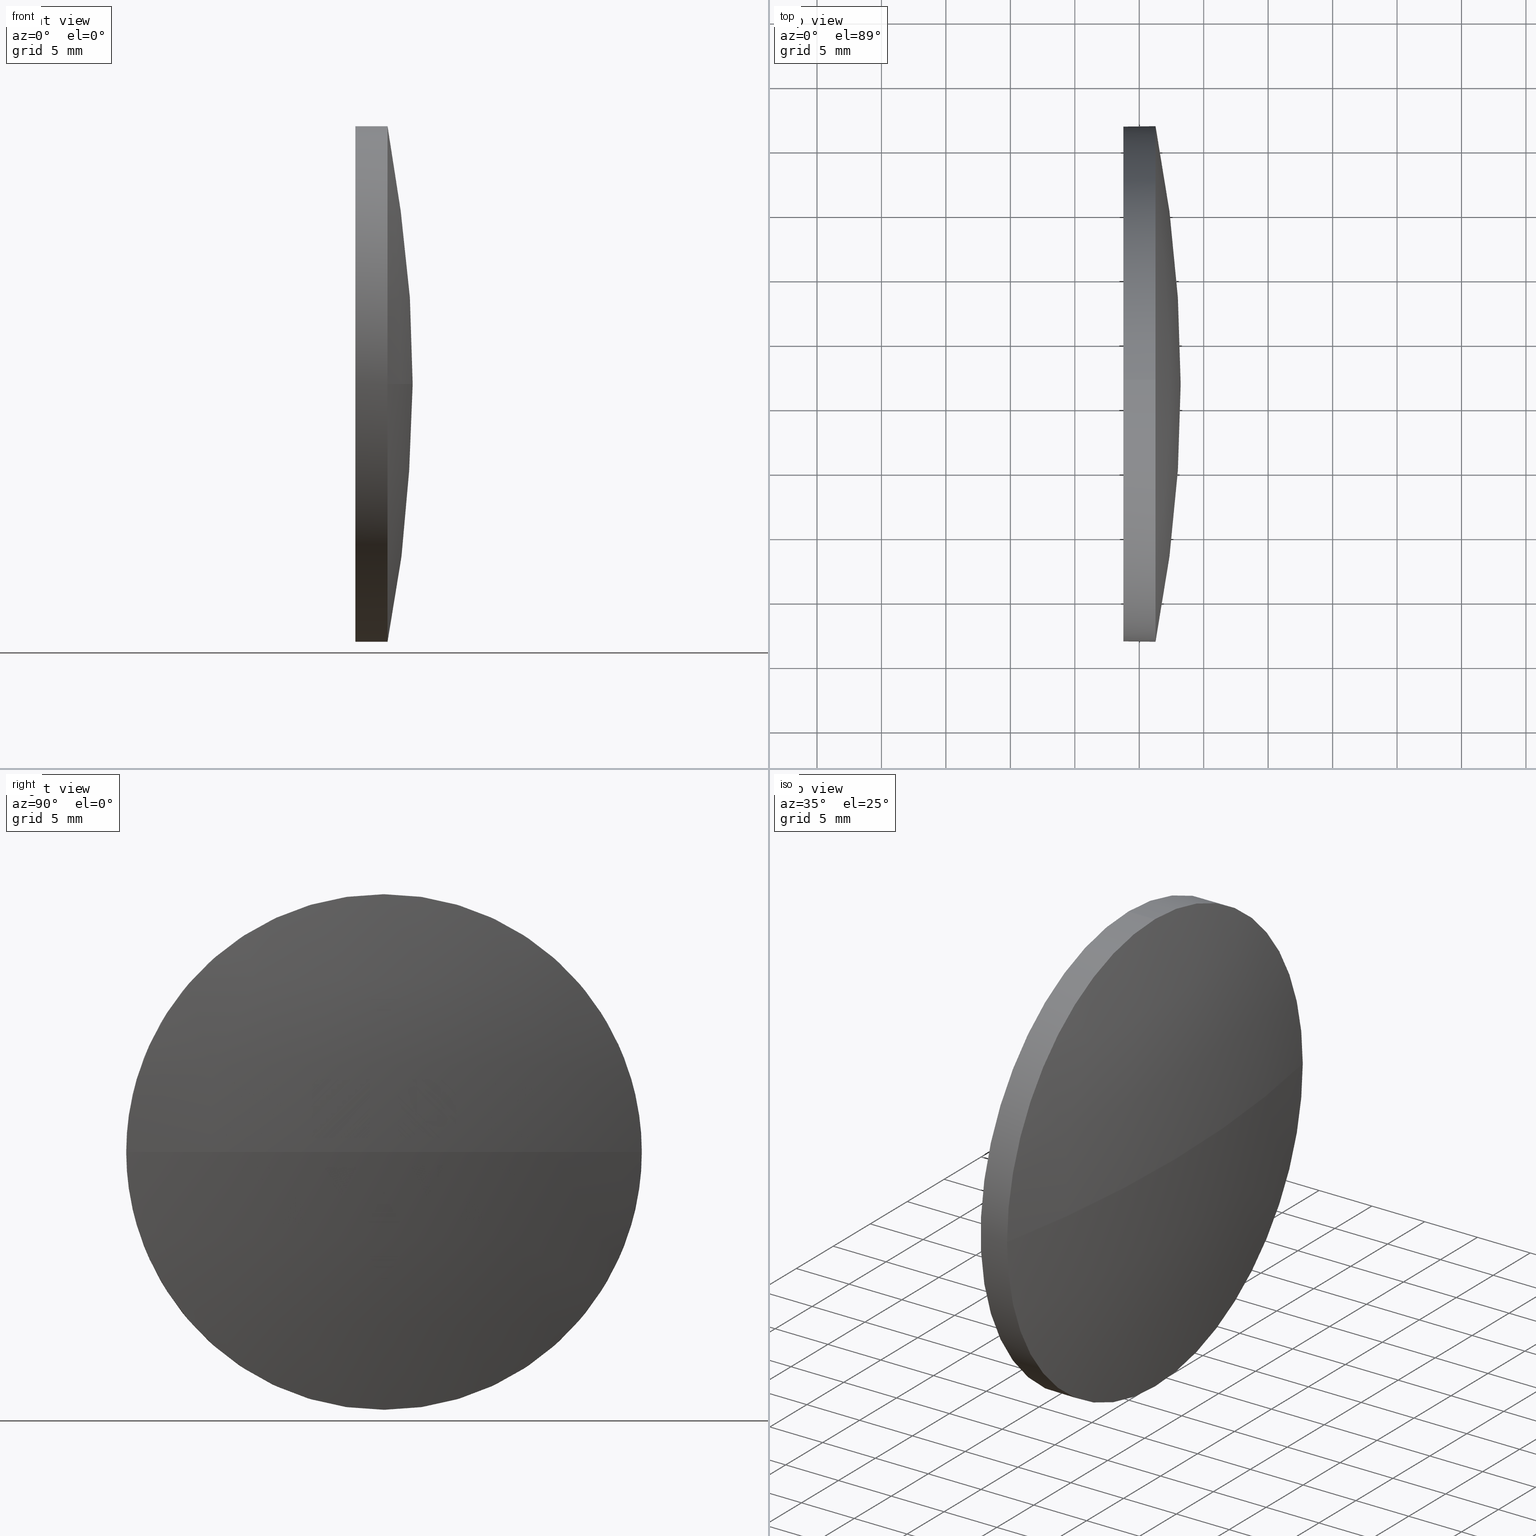
[diagram: canonical four-view strip — front | top / right | iso, engineering-drawing reading convention]
A machine part, canonical four-view strip (front | top / right | iso — engineering-drawing reading convention). The complete STEP part file that produces these views, byte-faithful:
ISO-10303-21;
HEADER;
FILE_DESCRIPTION (( 'STEP AP214' ),
    '1' );
FILE_NAME ('100233.STEP',
    '2019-05-27T09:36:45',
    ( '' ),
    ( '' ),
    'SwSTEP 2.0',
    'SolidWorks 2016',
    '' );
FILE_SCHEMA (( 'AUTOMOTIVE_DESIGN' ));
ENDSEC;

DATA;
#1 = DIRECTION ( 'NONE',  ( 1.000000000000000000, 0.0000000000000000000, 0.0000000000000000000 ) ) ;
#2 = SURFACE_SIDE_STYLE ('',( #156 ) ) ;
#3 = EDGE_LOOP ( 'NONE', ( #80, #157, #125, #52 ) ) ;
#4 = EDGE_LOOP ( 'NONE', ( #153, #90, #167, #107, #173 ) ) ;
#5 = VERTEX_POINT ( 'NONE', #97 ) ;
#6 = CIRCLE ( 'NONE', #106, 20.00000000000000400 ) ;
#7 = EDGE_CURVE ( 'NONE', #5, #119, #6, .T. ) ;
#8 = ORIENTED_EDGE ( 'NONE', *, *, #23, .T. ) ;
#9 = VECTOR ( 'NONE', #104, 1000.000000000000000 ) ;
#10 = ADVANCED_FACE ( 'NONE', ( #82 ), #129, .F. ) ;
#11 = CARTESIAN_POINT ( 'NONE',  ( 398.7641761276700000, 121.7145890969490300, 0.0000000000000000000 ) ) ;
#12 = DIRECTION ( 'NONE',  ( 0.0000000000000000000, 0.0000000000000000000, 1.000000000000000000 ) ) ;
#13 = CARTESIAN_POINT ( 'NONE',  ( 398.7641761276700000, 121.7145890969490300, 0.0000000000000000000 ) ) ;
#14 = DIRECTION ( 'NONE',  ( 0.0000000000000000000, 0.0000000000000000000, 1.000000000000000000 ) ) ;
#15 =( LENGTH_UNIT ( ) NAMED_UNIT ( * ) SI_UNIT ( .MILLI., .METRE. ) );
#16 = AXIS2_PLACEMENT_3D ( 'NONE', #51, #89, #1 ) ;
#17 = DIRECTION ( 'NONE',  ( -1.000000000000000000, -0.0000000000000000000, -0.0000000000000000000 ) ) ;
#18 = DIRECTION ( 'NONE',  ( -1.000000000000000000, -0.0000000000000000000, -0.0000000000000000000 ) ) ;
#19 = PRODUCT_CONTEXT ( 'NONE', #75, 'mechanical' ) ;
#20 = EDGE_CURVE ( 'NONE', #180, #22, #102, .T. ) ;
#21 = PRODUCT_DEFINITION_CONTEXT ( 'detailed design', #108, 'design' ) ;
#22 = VERTEX_POINT ( 'NONE', #44 ) ;
#23 = EDGE_CURVE ( 'NONE', #22, #5, #111, .T. ) ;
#24 = LINE ( 'NONE', #144, #139 ) ;
#25 = EDGE_CURVE ( 'NONE', #119, #66, #24, .T. ) ;
#26 = DIRECTION ( 'NONE',  ( 0.0000000000000000000, 0.0000000000000000000, 1.000000000000000000 ) ) ;
#27 = DIRECTION ( 'NONE',  ( 0.0000000000000000000, 1.000000000000000000, 1.224646799147353000E-016 ) ) ;
#28 = EDGE_CURVE ( 'NONE', #119, #180, #81, .T. ) ;
#29 = CARTESIAN_POINT ( 'NONE',  ( 394.7992225166840400, 121.7145890969490300, 20.00000000000000400 ) ) ;
#30 = CARTESIAN_POINT ( 'NONE',  ( 398.7641761276700000, 121.7145890969490300, -20.00000000000000400 ) ) ;
#31 = CARTESIAN_POINT ( 'NONE',  ( 398.7641761276700000, 121.7145890969490300, 0.0000000000000000000 ) ) ;
#32 = FILL_AREA_STYLE_COLOUR ( '', #134 ) ;
#33 = SURFACE_STYLE_USAGE ( .BOTH. , #149 ) ;
#34 = EDGE_CURVE ( 'NONE', #174, #5, #37, .T. ) ;
#35 = CARTESIAN_POINT ( 'NONE',  ( 398.7641761276700000, 121.7145890969490300, 20.00000000000000400 ) ) ;
#36 = ORIENTED_EDGE ( 'NONE', *, *, #68, .F. ) ;
#37 = CIRCLE ( 'NONE', #172, 103.5391025641022100 ) ;
#38 = EDGE_LOOP ( 'NONE', ( #123, #177 ) ) ;
#39 = SPHERICAL_SURFACE ( 'NONE', #127, 103.5391025641022100 ) ;
#40 = AXIS2_PLACEMENT_3D ( 'NONE', #164, #109, #150 ) ;
#41 = FACE_OUTER_BOUND ( 'NONE', #181, .T. ) ;
#42 = PRODUCT ( '100233', '100233', '', ( #19 ) ) ;
#43 = DIRECTION ( 'NONE',  ( 0.0000000000000000000, 0.0000000000000000000, 1.000000000000000000 ) ) ;
#44 = CARTESIAN_POINT ( 'NONE',  ( 401.2641761276700000, 121.7145890969490300, 20.00000000000000400 ) ) ;
#45 = CARTESIAN_POINT ( 'NONE',  ( 299.6750735635678200, 121.7145890969490300, 0.0000000000000000000 ) ) ;
#46 = PRESENTATION_STYLE_ASSIGNMENT (( #33 ) ) ;
#47 = CIRCLE ( 'NONE', #96, 20.00000000000000400 ) ;
#48 = DIRECTION ( 'NONE',  ( 0.0000000000000000000, 1.000000000000000000, 0.0000000000000000000 ) ) ;
#49 = AXIS2_PLACEMENT_3D ( 'NONE', #85, #100, #43 ) ;
#50 =( NAMED_UNIT ( * ) SI_UNIT ( $, .STERADIAN. ) SOLID_ANGLE_UNIT ( ) );
#51 = CARTESIAN_POINT ( 'NONE',  ( 0.0000000000000000000, 0.0000000000000000000, 0.0000000000000000000 ) ) ;
#52 = ORIENTED_EDGE ( 'NONE', *, *, #7, .F. ) ;
#53 = LINE ( 'NONE', #29, #9 ) ;
#54 = AXIS2_PLACEMENT_3D ( 'NONE', #158, #169, #12 ) ;
#55 = SHAPE_DEFINITION_REPRESENTATION ( #92, #56 ) ;
#56 = ADVANCED_BREP_SHAPE_REPRESENTATION ( '100233', ( #121, #16 ), #93 ) ;
#57 = EDGE_CURVE ( 'NONE', #174, #180, #186, .T. ) ;
#58 = EDGE_CURVE ( 'NONE', #66, #101, #47, .T. ) ;
#59 = AXIS2_PLACEMENT_3D ( 'NONE', #184, #17, #74 ) ;
#60 = PRESENTATION_LAYER_ASSIGNMENT (  '', '', ( #110 ) ) ;
#61 =( NAMED_UNIT ( * ) SI_UNIT ( $, .STERADIAN. ) SOLID_ANGLE_UNIT ( ) );
#62 =( LENGTH_UNIT ( ) NAMED_UNIT ( * ) SI_UNIT ( .MILLI., .METRE. ) );
#63 =( NAMED_UNIT ( * ) PLANE_ANGLE_UNIT ( ) SI_UNIT ( $, .RADIAN. ) );
#64 = AXIS2_PLACEMENT_3D ( 'NONE', #45, #118, #27 ) ;
#65 = ORIENTED_EDGE ( 'NONE', *, *, #57, .F. ) ;
#66 = VERTEX_POINT ( 'NONE', #30 ) ;
#67 = AXIS2_PLACEMENT_3D ( 'NONE', #103, #132, #26 ) ;
#68 = EDGE_CURVE ( 'NONE', #22, #101, #53, .T. ) ;
#69 = UNCERTAINTY_MEASURE_WITH_UNIT (LENGTH_MEASURE( 1.000000000000000100E-005 ), #162, 'distance_accuracy_value', 'NONE');
#70 = ADVANCED_FACE ( 'NONE', ( #41 ), #163, .T. ) ;
#71 = PRESENTATION_LAYER_ASSIGNMENT (  '', '', ( #137 ) ) ;
#72 = PRODUCT_RELATED_PRODUCT_CATEGORY ( 'part', '', ( #42 ) ) ;
#73 = DIRECTION ( 'NONE',  ( 1.000000000000000000, 0.0000000000000000000, 0.0000000000000000000 ) ) ;
#74 = DIRECTION ( 'NONE',  ( 0.0000000000000000000, 0.0000000000000000000, 1.000000000000000000 ) ) ;
#75 = APPLICATION_CONTEXT ( 'automotive_design' ) ;
#76 = ORIENTED_EDGE ( 'NONE', *, *, #25, .T. ) ;
#77 =( NAMED_UNIT ( * ) PLANE_ANGLE_UNIT ( ) SI_UNIT ( $, .RADIAN. ) );
#78 = DIRECTION ( 'NONE',  ( -1.000000000000000000, -0.0000000000000000000, -0.0000000000000000000 ) ) ;
#79 = CARTESIAN_POINT ( 'NONE',  ( 401.2641761276700000, 101.7145890969490300, -2.449293598294708100E-015 ) ) ;
#80 = ORIENTED_EDGE ( 'NONE', *, *, #34, .F. ) ;
#81 = CIRCLE ( 'NONE', #67, 20.00000000000000400 ) ;
#82 = FACE_OUTER_BOUND ( 'NONE', #38, .T. ) ;
#83 = ADVANCED_FACE ( 'NONE', ( #94 ), #39, .T. ) ;
#84 = DIRECTION ( 'NONE',  ( -1.000000000000000000, -0.0000000000000000000, -0.0000000000000000000 ) ) ;
#85 = CARTESIAN_POINT ( 'NONE',  ( 401.2641761276700000, 121.7145890969490300, 0.0000000000000000000 ) ) ;
#86 = MECHANICAL_DESIGN_GEOMETRIC_PRESENTATION_REPRESENTATION (  '', ( #110 ), #113 ) ;
#87 = ORIENTED_EDGE ( 'NONE', *, *, #179, .F. ) ;
#88 = DIRECTION ( 'NONE',  ( 0.0000000000000000000, 0.0000000000000000000, 1.000000000000000000 ) ) ;
#89 = DIRECTION ( 'NONE',  ( 0.0000000000000000000, 0.0000000000000000000, 1.000000000000000000 ) ) ;
#90 = ORIENTED_EDGE ( 'NONE', *, *, #28, .T. ) ;
#91 = FILL_AREA_STYLE ('',( #185 ) ) ;
#92 = PRODUCT_DEFINITION_SHAPE ( 'NONE', 'NONE',  #128 ) ;
#93 =( GEOMETRIC_REPRESENTATION_CONTEXT ( 3 ) GLOBAL_UNCERTAINTY_ASSIGNED_CONTEXT ( ( #140 ) ) GLOBAL_UNIT_ASSIGNED_CONTEXT ( ( #15, #63, #50 ) ) REPRESENTATION_CONTEXT ( 'NONE', 'WORKASPACE' ) );
#94 = FACE_OUTER_BOUND ( 'NONE', #175, .T. ) ;
#95 = ORIENTED_EDGE ( 'NONE', *, *, #23, .F. ) ;
#96 = AXIS2_PLACEMENT_3D ( 'NONE', #13, #84, #14 ) ;
#97 = CARTESIAN_POINT ( 'NONE',  ( 401.2641761276700000, 141.7145890969490600, 0.0000000000000000000 ) ) ;
#98 = ORIENTED_EDGE ( 'NONE', *, *, #34, .T. ) ;
#99 = MECHANICAL_DESIGN_GEOMETRIC_PRESENTATION_REPRESENTATION (  '', ( #137 ), #112 ) ;
#100 = DIRECTION ( 'NONE',  ( -1.000000000000000000, -0.0000000000000000000, -0.0000000000000000000 ) ) ;
#101 = VERTEX_POINT ( 'NONE', #35 ) ;
#102 = CIRCLE ( 'NONE', #49, 20.00000000000000400 ) ;
#103 = CARTESIAN_POINT ( 'NONE',  ( 401.2641761276700000, 121.7145890969490300, 0.0000000000000000000 ) ) ;
#104 = DIRECTION ( 'NONE',  ( -1.000000000000000000, -0.0000000000000000000, -0.0000000000000000000 ) ) ;
#105 = UNCERTAINTY_MEASURE_WITH_UNIT (LENGTH_MEASURE( 1.000000000000000100E-005 ), #62, 'distance_accuracy_value', 'NONE');
#106 = AXIS2_PLACEMENT_3D ( 'NONE', #141, #178, #130 ) ;
#107 = ORIENTED_EDGE ( 'NONE', *, *, #68, .T. ) ;
#108 = APPLICATION_CONTEXT ( 'automotive_design' ) ;
#109 = DIRECTION ( 'NONE',  ( -0.0000000000000000000, 0.0000000000000000000, -1.000000000000000000 ) ) ;
#110 = STYLED_ITEM ( 'NONE', ( #46 ), #56 ) ;
#111 = CIRCLE ( 'NONE', #54, 20.00000000000000400 ) ;
#112 =( GEOMETRIC_REPRESENTATION_CONTEXT ( 3 ) GLOBAL_UNCERTAINTY_ASSIGNED_CONTEXT ( ( #69 ) ) GLOBAL_UNIT_ASSIGNED_CONTEXT ( ( #162, #138, #61 ) ) REPRESENTATION_CONTEXT ( 'NONE', 'WORKASPACE' ) );
#113 =( GEOMETRIC_REPRESENTATION_CONTEXT ( 3 ) GLOBAL_UNCERTAINTY_ASSIGNED_CONTEXT ( ( #105 ) ) GLOBAL_UNIT_ASSIGNED_CONTEXT ( ( #62, #77, #171 ) ) REPRESENTATION_CONTEXT ( 'NONE', 'WORKASPACE' ) );
#114 = CLOSED_SHELL ( 'NONE', ( #70, #161, #83, #146, #10 ) ) ;
#115 = PRESENTATION_STYLE_ASSIGNMENT (( #148 ) ) ;
#116 = PRODUCT_DEFINITION_FORMATION_WITH_SPECIFIED_SOURCE ( '�κ�', '', #42, .NOT_KNOWN. ) ;
#117 = DIRECTION ( 'NONE',  ( -0.0000000000000000000, 0.0000000000000000000, 1.000000000000000000 ) ) ;
#118 = DIRECTION ( 'NONE',  ( 0.0000000000000000000, 1.224646799147353200E-016, -1.000000000000000000 ) ) ;
#119 = VERTEX_POINT ( 'NONE', #166 ) ;
#120 = DIRECTION ( 'NONE',  ( 0.0000000000000000000, 0.0000000000000000000, -1.000000000000000000 ) ) ;
#121 = MANIFOLD_SOLID_BREP ( '��ת1', #114 ) ;
#122 = APPLICATION_PROTOCOL_DEFINITION ( 'draft international standard', 'automotive_design', 1998, #108 ) ;
#123 = ORIENTED_EDGE ( 'NONE', *, *, #179, .T. ) ;
#124 = SURFACE_STYLE_FILL_AREA ( #136 ) ;
#125 = ORIENTED_EDGE ( 'NONE', *, *, #28, .F. ) ;
#126 = COLOUR_RGB ( '',1.000000000000000000, 1.000000000000000000, 1.000000000000000000 ) ;
#127 = AXIS2_PLACEMENT_3D ( 'NONE', #147, #135, #48 ) ;
#128 = PRODUCT_DEFINITION ( 'δ֪', '', #116, #21 ) ;
#129 = PLANE ( 'NONE',  #152 ) ;
#130 = DIRECTION ( 'NONE',  ( 0.0000000000000000000, 0.0000000000000000000, 1.000000000000000000 ) ) ;
#131 = DIRECTION ( 'NONE',  ( 1.000000000000000000, 0.0000000000000000000, 0.0000000000000000000 ) ) ;
#132 = DIRECTION ( 'NONE',  ( -1.000000000000000000, -0.0000000000000000000, -0.0000000000000000000 ) ) ;
#133 = DIRECTION ( 'NONE',  ( 0.0000000000000000000, 0.0000000000000000000, 1.000000000000000000 ) ) ;
#134 = COLOUR_RGB ( '',1.000000000000000000, 1.000000000000000000, 1.000000000000000000 ) ;
#135 = DIRECTION ( 'NONE',  ( -0.0000000000000000000, 0.0000000000000000000, -1.000000000000000000 ) ) ;
#136 = FILL_AREA_STYLE ('',( #32 ) ) ;
#137 = STYLED_ITEM ( 'NONE', ( #115 ), #121 ) ;
#138 =( NAMED_UNIT ( * ) PLANE_ANGLE_UNIT ( ) SI_UNIT ( $, .RADIAN. ) );
#139 = VECTOR ( 'NONE', #183, 1000.000000000000000 ) ;
#140 = UNCERTAINTY_MEASURE_WITH_UNIT (LENGTH_MEASURE( 1.000000000000000100E-005 ), #15, 'distance_accuracy_value', 'NONE');
#141 = CARTESIAN_POINT ( 'NONE',  ( 401.2641761276700000, 121.7145890969490300, 0.0000000000000000000 ) ) ;
#142 = ORIENTED_EDGE ( 'NONE', *, *, #20, .F. ) ;
#143 = AXIS2_PLACEMENT_3D ( 'NONE', #170, #18, #133 ) ;
#144 = CARTESIAN_POINT ( 'NONE',  ( 394.7992225166840400, 121.7145890969490300, -20.00000000000000400 ) ) ;
#145 = CARTESIAN_POINT ( 'NONE',  ( 299.6750735635678200, 121.7145890969490300, 0.0000000000000000000 ) ) ;
#146 = ADVANCED_FACE ( 'NONE', ( #168 ), #182, .T. ) ;
#147 = CARTESIAN_POINT ( 'NONE',  ( 299.6750735635678200, 121.7145890969490300, 0.0000000000000000000 ) ) ;
#148 = SURFACE_STYLE_USAGE ( .BOTH. , #2 ) ;
#149 = SURFACE_SIDE_STYLE ('',( #124 ) ) ;
#150 = DIRECTION ( 'NONE',  ( 0.0000000000000000000, 1.000000000000000000, 0.0000000000000000000 ) ) ;
#151 = APPLICATION_PROTOCOL_DEFINITION ( 'draft international standard', 'automotive_design', 1998, #75 ) ;
#152 = AXIS2_PLACEMENT_3D ( 'NONE', #11, #73, #120 ) ;
#153 = ORIENTED_EDGE ( 'NONE', *, *, #25, .F. ) ;
#154 = CIRCLE ( 'NONE', #159, 20.00000000000000400 ) ;
#155 = ORIENTED_EDGE ( 'NONE', *, *, #7, .T. ) ;
#156 = SURFACE_STYLE_FILL_AREA ( #91 ) ;
#157 = ORIENTED_EDGE ( 'NONE', *, *, #57, .T. ) ;
#158 = CARTESIAN_POINT ( 'NONE',  ( 401.2641761276700000, 121.7145890969490300, 0.0000000000000000000 ) ) ;
#159 = AXIS2_PLACEMENT_3D ( 'NONE', #31, #78, #88 ) ;
#160 = FACE_OUTER_BOUND ( 'NONE', #3, .T. ) ;
#161 = ADVANCED_FACE ( 'NONE', ( #160 ), #176, .T. ) ;
#162 =( LENGTH_UNIT ( ) NAMED_UNIT ( * ) SI_UNIT ( .MILLI., .METRE. ) );
#163 = CYLINDRICAL_SURFACE ( 'NONE', #143, 20.00000000000000400 ) ;
#164 = CARTESIAN_POINT ( 'NONE',  ( 299.6750735635678200, 121.7145890969490300, 0.0000000000000000000 ) ) ;
#165 = CARTESIAN_POINT ( 'NONE',  ( 403.2141761276700400, 121.7145890969490300, 0.0000000000000000000 ) ) ;
#166 = CARTESIAN_POINT ( 'NONE',  ( 401.2641761276700000, 121.7145890969490300, -20.00000000000000400 ) ) ;
#167 = ORIENTED_EDGE ( 'NONE', *, *, #20, .T. ) ;
#168 = FACE_OUTER_BOUND ( 'NONE', #4, .T. ) ;
#169 = DIRECTION ( 'NONE',  ( -1.000000000000000000, -0.0000000000000000000, -0.0000000000000000000 ) ) ;
#170 = CARTESIAN_POINT ( 'NONE',  ( 394.7992225166840400, 121.7145890969490300, 0.0000000000000000000 ) ) ;
#171 =( NAMED_UNIT ( * ) SI_UNIT ( $, .STERADIAN. ) SOLID_ANGLE_UNIT ( ) );
#172 = AXIS2_PLACEMENT_3D ( 'NONE', #145, #117, #131 ) ;
#173 = ORIENTED_EDGE ( 'NONE', *, *, #58, .F. ) ;
#174 = VERTEX_POINT ( 'NONE', #165 ) ;
#175 = EDGE_LOOP ( 'NONE', ( #65, #98, #95, #142 ) ) ;
#176 = SPHERICAL_SURFACE ( 'NONE', #40, 103.5391025641022100 ) ;
#177 = ORIENTED_EDGE ( 'NONE', *, *, #58, .T. ) ;
#178 = DIRECTION ( 'NONE',  ( -1.000000000000000000, -0.0000000000000000000, -0.0000000000000000000 ) ) ;
#179 = EDGE_CURVE ( 'NONE', #101, #66, #154, .T. ) ;
#180 = VERTEX_POINT ( 'NONE', #79 ) ;
#181 = EDGE_LOOP ( 'NONE', ( #155, #76, #87, #36, #8 ) ) ;
#182 = CYLINDRICAL_SURFACE ( 'NONE', #59, 20.00000000000000400 ) ;
#183 = DIRECTION ( 'NONE',  ( -1.000000000000000000, -0.0000000000000000000, -0.0000000000000000000 ) ) ;
#184 = CARTESIAN_POINT ( 'NONE',  ( 394.7992225166840400, 121.7145890969490300, 0.0000000000000000000 ) ) ;
#185 = FILL_AREA_STYLE_COLOUR ( '', #126 ) ;
#186 = CIRCLE ( 'NONE', #64, 103.5391025641022200 ) ;
ENDSEC;
END-ISO-10303-21;
